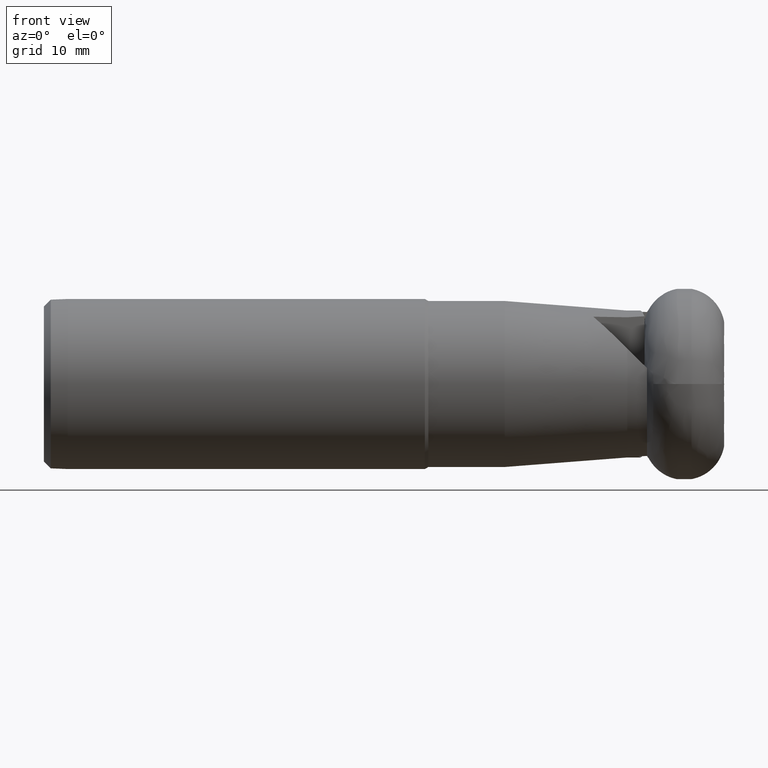
[diagram: clean part render]
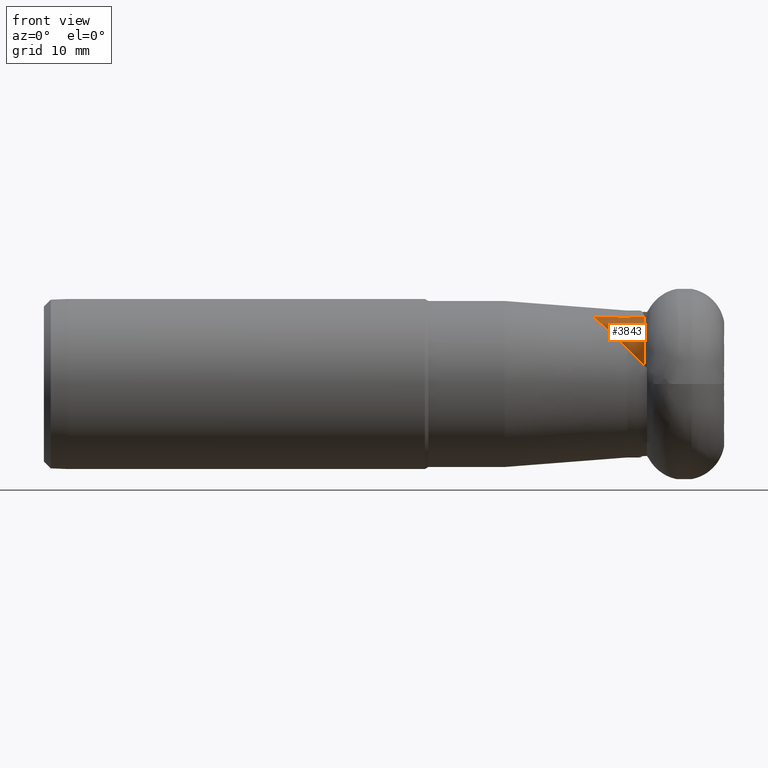
[diagram: same view with one face highlighted and labeled with its STEP entity id]
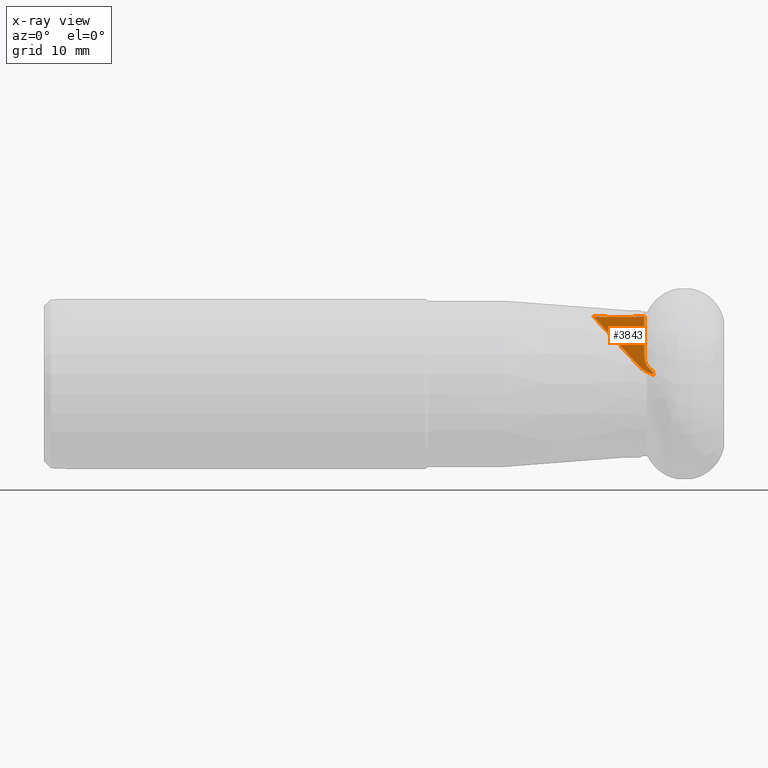
[diagram: x-ray of the same camera — body ghosted, the highlighted face saturated]
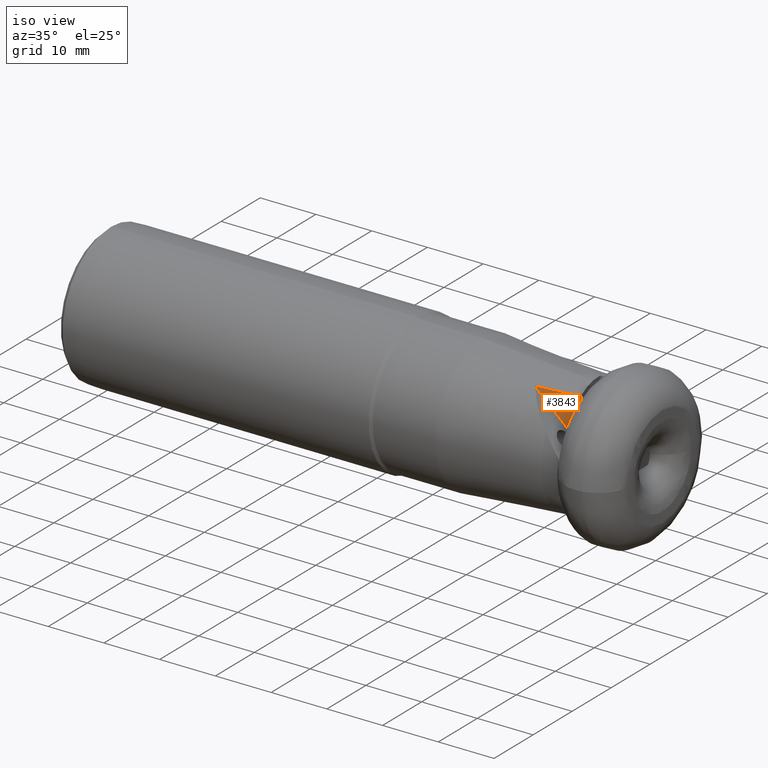
[diagram: same view with one face highlighted and labeled with its STEP entity id]
A machine part, front view. The second image highlights one B-rep face of the part: STEP entity #3843.
The next image is the same camera in x-ray: the body ghosted, the highlighted face saturated — about 0% of this face is hidden behind the body in this view.
A second angle (iso view) of the same face is appended — the face is thin or edge-on in the first view.
In plain terms, the highlighted planar face has unit normal (-0.1392, 0.9903, -0).
Its self-contained STEP definition (entity closure, byte-faithful):
#22 = B_SPLINE_CURVE_WITH_KNOTS ( 'NONE', 3,
 ( #2826, #2167, #2812, #245 ),
 .UNSPECIFIED., .F., .F.,
 ( 4, 4 ),
 ( 0.0003348319304409695600, 0.0009601766752402941000 ),
 .UNSPECIFIED. ) ;
#31 = CARTESIAN_POINT ( 'NONE',  ( -7.203879869770655200, -3.709249778547786500, 7.000000000000026600 ) ) ;
#62 = CARTESIAN_POINT ( 'NONE',  ( -10.47425624275024700, -4.168871203797317900, 7.889376126105882600 ) ) ;
#101 = CARTESIAN_POINT ( 'NONE',  ( -10.47176449661783900, -4.168521011716024700, 4.025000000000027000 ) ) ;
#162 = CARTESIAN_POINT ( 'NONE',  ( -7.996094324763912000, -3.820588259315859800, 4.025000000000024300 ) ) ;
#178 = ORIENTED_EDGE ( 'NONE', *, *, #3776, .T. ) ;
#193 = DIRECTION ( 'NONE',  ( 0.1391731009600657700, -0.9902680687415703600, 6.915004964926843800E-015 ) ) ;
#236 = CARTESIAN_POINT ( 'NONE',  ( -7.203879869770655200, -3.709249778547786500, 7.000000000000026600 ) ) ;
#245 = CARTESIAN_POINT ( 'NONE',  ( -9.325396458301732100, -4.007409490734950500, 1.915959065057589500 ) ) ;
#278 = AXIS2_PLACEMENT_3D ( 'NONE', #236, #1261, #1216 ) ;
#307 = VERTEX_POINT ( 'NONE', #3781 ) ;
#347 = CARTESIAN_POINT ( 'NONE',  ( -10.47815013050312900, -4.169418454032339100, 8.220559417116042800 ) ) ;
#355 = LINE ( 'NONE', #2227, #1835 ) ;
#360 = CARTESIAN_POINT ( 'NONE',  ( -10.47176449661783900, -4.168521011715995400, 8.256892842653991600 ) ) ;
#388 = DIRECTION ( 'NONE',  ( 0.9902680687415702500, 0.1391731009600657400, -9.718405697420017900E-016 ) ) ;
#402 = EDGE_LOOP ( 'NONE', ( #552, #3668, #2069, #2151, #2917, #1607, #1823, #2536, #178, #1994 ) ) ;
#406 = CARTESIAN_POINT ( 'NONE',  ( -17.98366714293408500, -5.224250079832374100, 9.892927779384566000 ) ) ;
#411 =( BOUNDED_CURVE ( )  B_SPLINE_CURVE ( 3, ( #1974, #3986, #2453, #1536 ),
 .UNSPECIFIED., .F., .T. ) 
 B_SPLINE_CURVE_WITH_KNOTS ( ( 4, 4 ),
 ( 1.967059913790765200, 2.003001482352997800 ),
 .UNSPECIFIED. ) 
 CURVE ( )  GEOMETRIC_REPRESENTATION_ITEM ( )  RATIONAL_B_SPLINE_CURVE ( ( 1.000000000000000000, 0.9998923532011903000, 0.9998923532011903000, 1.000000000000000000 ) ) 
 REPRESENTATION_ITEM ( '' )  );
#506 = VERTEX_POINT ( 'NONE', #681 ) ;
#533 = DIRECTION ( 'NONE',  ( 0.0000000000000000000, -6.982962677686266700E-015, -1.000000000000000000 ) ) ;
#552 = ORIENTED_EDGE ( 'NONE', *, *, #2052, .T. ) ;
#615 = CARTESIAN_POINT ( 'NONE',  ( -9.126017583887195500, -3.979388617302714400, 1.322640436279670200 ) ) ;
#644 = EDGE_CURVE ( 'NONE', #307, #506, #3894, .T. ) ;
#655 = VERTEX_POINT ( 'NONE', #101 ) ;
#664 = CARTESIAN_POINT ( 'NONE',  ( -10.47176449661521100, -4.168521011715625100, 7.751327786215220800 ) ) ;
#681 = CARTESIAN_POINT ( 'NONE',  ( -10.47176449661783900, -4.168521011715995400, 8.256892842653991600 ) ) ;
#723 = VERTEX_POINT ( 'NONE', #759 ) ;
#759 = CARTESIAN_POINT ( 'NONE',  ( -12.99999999999999800, -4.523841339685533900, 9.806878174697192900 ) ) ;
#858 = B_SPLINE_CURVE_WITH_KNOTS ( 'NONE', 3,
 ( #2221, #3204, #4185, #1259 ),
 .UNSPECIFIED., .F., .F.,
 ( 4, 4 ),
 ( 0.006894721426562717800, 0.006957080235082523800 ),
 .UNSPECIFIED. ) ;
#1023 = EDGE_CURVE ( 'NONE', #4129, #3705, #22, .T. ) ;
#1033 = VERTEX_POINT ( 'NONE', #1837 ) ;
#1084 = EDGE_CURVE ( 'NONE', #2274, #655, #1642, .T. ) ;
#1176 = AXIS2_PLACEMENT_3D ( 'NONE', #162, #193, #2767 ) ;
#1210 = CARTESIAN_POINT ( 'NONE',  ( -11.55424675272434100, -4.320653971539768700, 2.913376345136305300 ) ) ;
#1216 = DIRECTION ( 'NONE',  ( 0.9902680687415702500, 0.1391731009600658000, -1.011922027653136900E-015 ) ) ;
#1232 = CIRCLE ( 'NONE', #1176, 2.500000000000000400 ) ;
#1259 = CARTESIAN_POINT ( 'NONE',  ( -10.47282107851877500, -4.168669504618291600, 7.815740999228597600 ) ) ;
#1261 = DIRECTION ( 'NONE',  ( 0.1391731009600657700, -0.9902680687415703600, 6.915004964926843800E-015 ) ) ;
#1289 = CARTESIAN_POINT ( 'NONE',  ( -9.325396458301732100, -4.007409490734950500, 1.915959065057589500 ) ) ;
#1362 = CARTESIAN_POINT ( 'NONE',  ( -10.48715898281713000, -4.170684565656260100, 8.110867474177551300 ) ) ;
#1517 = CARTESIAN_POINT ( 'NONE',  ( -12.99999999999999800, -4.523841339685533900, 9.806878174697192900 ) ) ;
#1536 = CARTESIAN_POINT ( 'NONE',  ( -12.99999999999999800, -4.523841339685533900, 9.806878174697192900 ) ) ;
#1607 = ORIENTED_EDGE ( 'NONE', *, *, #3929, .T. ) ;
#1642 = LINE ( 'NONE', #2495, #3533 ) ;
#1654 = EDGE_CURVE ( 'NONE', #307, #723, #411, .T. ) ;
#1684 = EDGE_CURVE ( 'NONE', #2274, #1033, #858, .T. ) ;
#1692 = CARTESIAN_POINT ( 'NONE',  ( -10.48620750076275200, -4.170550843574128300, 8.074033968688841200 ) ) ;
#1727 = DIRECTION ( 'NONE',  ( 0.0000000000000000000, -6.982962677686266700E-015, -1.000000000000000000 ) ) ;
#1823 = ORIENTED_EDGE ( 'NONE', *, *, #644, .F. ) ;
#1835 = VECTOR ( 'NONE', #3868, 1000.000000000000000 ) ;
#1837 = CARTESIAN_POINT ( 'NONE',  ( -10.47282107851877500, -4.168669504618291600, 7.815740999228597600 ) ) ;
#1974 = CARTESIAN_POINT ( 'NONE',  ( -10.47176449661783900, -4.168521011715983000, 9.963103561384992100 ) ) ;
#1994 = ORIENTED_EDGE ( 'NONE', *, *, #4203, .T. ) ;
#2052 = EDGE_CURVE ( 'NONE', #2886, #4129, #3744, .T. ) ;
#2069 = ORIENTED_EDGE ( 'NONE', *, *, #3442, .F. ) ;
#2122 = AXIS2_PLACEMENT_3D ( 'NONE', #31, #2953, #388 ) ;
#2151 = ORIENTED_EDGE ( 'NONE', *, *, #1084, .F. ) ;
#2167 = CARTESIAN_POINT ( 'NONE',  ( -9.186079411846551000, -3.987829756737872900, 1.522167522377891900 ) ) ;
#2200 = B_SPLINE_CURVE_WITH_KNOTS ( 'NONE', 3,
 ( #3268, #62, #2639, #1692, #1362, #3608, #347, #360 ),
 .UNSPECIFIED., .F., .F.,
 ( 4, 2, 2, 4 ),
 ( 0.006957080235082523800, 0.007170894979643058200, 0.007277802351923327200, 0.007384709724203597000 ),
 .UNSPECIFIED. ) ;
#2221 = CARTESIAN_POINT ( 'NONE',  ( -10.47176449661521100, -4.168521011715625100, 7.751327786215220800 ) ) ;
#2227 = CARTESIAN_POINT ( 'NONE',  ( -22.59607992243030900, -5.872482421854718000, 14.90000000000004100 ) ) ;
#2274 = VERTEX_POINT ( 'NONE', #664 ) ;
#2359 = CARTESIAN_POINT ( 'NONE',  ( -10.47176449661783900, -4.168521011716024700, 4.025000000000027000 ) ) ;
#2453 = CARTESIAN_POINT ( 'NONE',  ( -12.16395933783870100, -4.406343487180245200, 9.861079076657935300 ) ) ;
#2495 = CARTESIAN_POINT ( 'NONE',  ( -10.47176449661783900, -4.168521011716024700, 4.025000000000027000 ) ) ;
#2504 = VECTOR ( 'NONE', #1727, 1000.000000000000000 ) ;
#2536 = ORIENTED_EDGE ( 'NONE', *, *, #1654, .T. ) ;
#2575 = CARTESIAN_POINT ( 'NONE',  ( -14.65372444034613700, -4.756257152899528300, 9.841314848637868100 ) ) ;
#2639 = CARTESIAN_POINT ( 'NONE',  ( -10.48140738809886900, -4.169876231733685900, 7.963400840333190600 ) ) ;
#2767 = DIRECTION ( 'NONE',  ( 0.9902680687415703600, 0.1391731009600656900, -1.040834085586084100E-015 ) ) ;
#2812 = CARTESIAN_POINT ( 'NONE',  ( -9.254109190709234800, -3.997390718643876200, 1.719509878606080300 ) ) ;
#2826 = CARTESIAN_POINT ( 'NONE',  ( -9.126017583887195500, -3.979388617302714400, 1.322640436279670200 ) ) ;
#2886 = VERTEX_POINT ( 'NONE', #1210 ) ;
#2917 = ORIENTED_EDGE ( 'NONE', *, *, #1684, .T. ) ;
#2953 = DIRECTION ( 'NONE',  ( -0.1391731009600657400, 0.9902680687415702500, -6.915004964926843100E-015 ) ) ;
#3198 = PLANE ( 'NONE',  #2122 ) ;
#3204 = CARTESIAN_POINT ( 'NONE',  ( -10.47207167718473500, -4.168564183129277900, 7.772795789216091900 ) ) ;
#3268 = CARTESIAN_POINT ( 'NONE',  ( -10.47282107851877500, -4.168669504618291600, 7.815740999228597600 ) ) ;
#3338 = VERTEX_POINT ( 'NONE', #406 ) ;
#3442 = EDGE_CURVE ( 'NONE', #655, #3705, #1232, .T. ) ;
#3533 = VECTOR ( 'NONE', #533, 1000.000000000000000 ) ;
#3543 =( BOUNDED_CURVE ( )  B_SPLINE_CURVE ( 3, ( #1517, #2575, #3898, #4239 ),
 .UNSPECIFIED., .F., .F. ) 
 B_SPLINE_CURVE_WITH_KNOTS ( ( 4, 4 ),
 ( 4.536336962481055200, 4.595545945182809800 ),
 .UNSPECIFIED. ) 
 CURVE ( )  GEOMETRIC_REPRESENTATION_ITEM ( )  RATIONAL_B_SPLINE_CURVE ( ( 1.000000000000000000, 0.9997078793667277800, 0.9997078793667277800, 1.000000000000000000 ) ) 
 REPRESENTATION_ITEM ( '' )  );
#3608 = CARTESIAN_POINT ( 'NONE',  ( -10.48366589665659800, -4.170193644411570600, 8.184166703512294900 ) ) ;
#3619 = FACE_OUTER_BOUND ( 'NONE', #402, .T. ) ;
#3668 = ORIENTED_EDGE ( 'NONE', *, *, #1023, .T. ) ;
#3705 = VERTEX_POINT ( 'NONE', #1289 ) ;
#3744 = CIRCLE ( 'NONE', #278, 6.000000000000002700 ) ;
#3776 = EDGE_CURVE ( 'NONE', #723, #3338, #3543, .T. ) ;
#3781 = CARTESIAN_POINT ( 'NONE',  ( -10.47176449661783900, -4.168521011715983000, 9.963103561384992100 ) ) ;
#3843 = ADVANCED_FACE ( 'NONE', ( #3619 ), #3198, .F. ) ;
#3868 = DIRECTION ( 'NONE',  ( 0.6744754857292526400, 0.09479134775068519300, -0.7321867381630845500 ) ) ;
#3894 = LINE ( 'NONE', #2359, #2504 ) ;
#3898 = CARTESIAN_POINT ( 'NONE',  ( -16.31543224045913100, -4.989794954158882400, 9.870006431603668400 ) ) ;
#3929 = EDGE_CURVE ( 'NONE', #1033, #506, #2200, .T. ) ;
#3986 = CARTESIAN_POINT ( 'NONE',  ( -11.32112344145850000, -4.287890626785833000, 9.913159811878292900 ) ) ;
#4129 = VERTEX_POINT ( 'NONE', #615 ) ;
#4185 = CARTESIAN_POINT ( 'NONE',  ( -10.47240251462745800, -4.168610679299620300, 7.794265404611818000 ) ) ;
#4203 = EDGE_CURVE ( 'NONE', #3338, #2886, #355, .T. ) ;
#4239 = CARTESIAN_POINT ( 'NONE',  ( -17.98366714293408500, -5.224250079832374100, 9.892927779384566000 ) ) ;